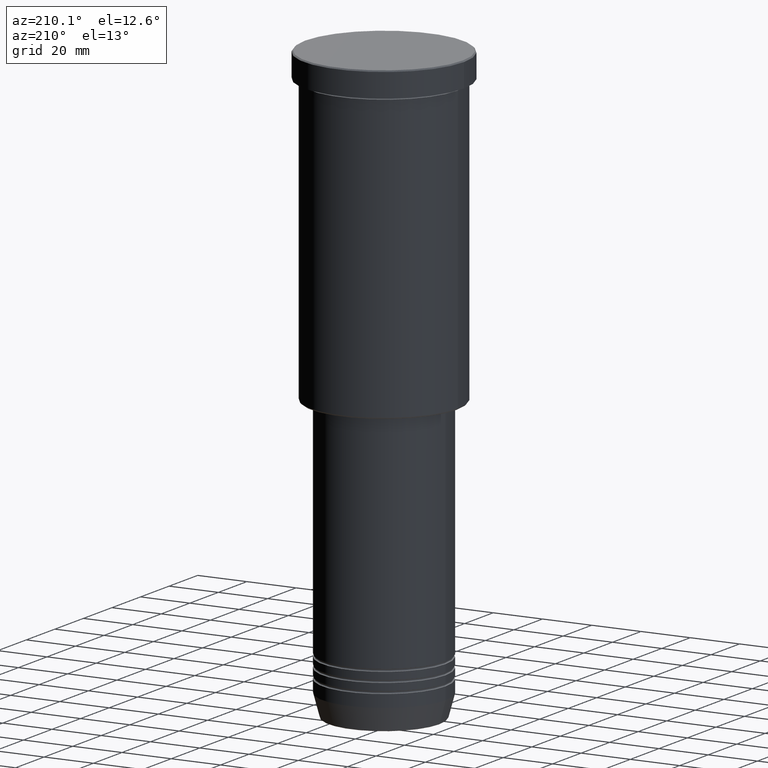
[diagram: clean part render]
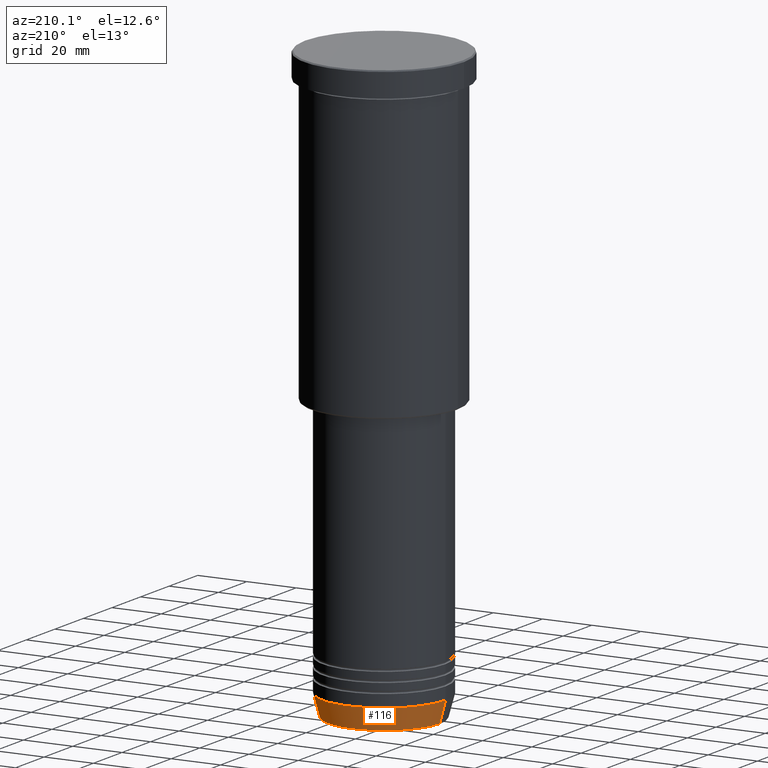
[diagram: same view with one face highlighted and labeled with its STEP entity id]
A machine part, auxiliary view. The second image highlights one B-rep face of the part: STEP entity #116.
In plain terms, the highlighted conical surface has half-angle 15 deg.
Its self-contained STEP definition (entity closure, byte-faithful):
#20 = DIRECTION ( 'NONE',  ( -0.000000000000000000, -0.000000000000000000, 1.000000000000000000 ) ) ;
#21 = AXIS2_PLACEMENT_3D ( 'NONE', #256, #61, #984 ) ;
#61 = DIRECTION ( 'NONE',  ( -0.000000000000000000, -0.000000000000000000, 1.000000000000000000 ) ) ;
#101 = ORIENTED_EDGE ( 'NONE', *, *, #847, .T. ) ;
#102 = DIRECTION ( 'NONE',  ( 1.000000000000000000, 0.000000000000000000, 0.000000000000000000 ) ) ;
#116 = ADVANCED_FACE ( 'NONE', ( #615 ), #771, .T. ) ;
#159 = CARTESIAN_POINT ( 'NONE',  ( 0.000000000000000000, 0.000000000000000000, -231.0000000000000000 ) ) ;
#160 = EDGE_CURVE ( 'NONE', #683, #301, #538, .T. ) ;
#171 = CARTESIAN_POINT ( 'NONE',  ( 25.00000000000000000, 0.000000000000000000, -231.0000000000000000 ) ) ;
#222 = VECTOR ( 'NONE', #1052, 1000.000000000000114 ) ;
#242 = ORIENTED_EDGE ( 'NONE', *, *, #160, .F. ) ;
#246 = LINE ( 'NONE', #1079, #876 ) ;
#256 = CARTESIAN_POINT ( 'NONE',  ( 0.000000000000000000, 0.000000000000000000, -231.0000000000000000 ) ) ;
#295 = CARTESIAN_POINT ( 'NONE',  ( 22.68775668727493766, 0.000000000000000000, -239.6294095225512706 ) ) ;
#301 = VERTEX_POINT ( 'NONE', #843 ) ;
#314 = ORIENTED_EDGE ( 'NONE', *, *, #612, .F. ) ;
#327 = DIRECTION ( 'NONE',  ( 1.000000000000000000, 0.000000000000000000, 0.000000000000000000 ) ) ;
#388 = LINE ( 'NONE', #687, #222 ) ;
#402 = AXIS2_PLACEMENT_3D ( 'NONE', #159, #430, #327 ) ;
#430 = DIRECTION ( 'NONE',  ( -0.000000000000000000, -0.000000000000000000, 1.000000000000000000 ) ) ;
#535 = CARTESIAN_POINT ( 'NONE',  ( -22.68775668727493766, 2.920032929279452187E-15, -239.6294095225512706 ) ) ;
#538 = CIRCLE ( 'NONE', #21, 25.00000000000000000 ) ;
#593 = CIRCLE ( 'NONE', #792, 22.68775668727493766 ) ;
#612 = EDGE_CURVE ( 'NONE', #1044, #683, #246, .T. ) ;
#615 = FACE_OUTER_BOUND ( 'NONE', #1133, .T. ) ;
#683 = VERTEX_POINT ( 'NONE', #171 ) ;
#687 = CARTESIAN_POINT ( 'NONE',  ( -25.00000000000000000, 3.061616997868383043E-15, -231.0000000000000000 ) ) ;
#771 = CONICAL_SURFACE ( 'NONE', #402, 25.00000000000000000, 0.2617993877991499629 ) ;
#792 = AXIS2_PLACEMENT_3D ( 'NONE', #849, #20, #102 ) ;
#843 = CARTESIAN_POINT ( 'NONE',  ( -25.00000000000000000, 3.061616997868383043E-15, -231.0000000000000000 ) ) ;
#847 = EDGE_CURVE ( 'NONE', #1044, #1141, #593, .T. ) ;
#849 = CARTESIAN_POINT ( 'NONE',  ( 0.000000000000000000, 0.000000000000000000, -239.6294095225512706 ) ) ;
#876 = VECTOR ( 'NONE', #1154, 1000.000000000000114 ) ;
#984 = DIRECTION ( 'NONE',  ( 1.000000000000000000, 0.000000000000000000, 0.000000000000000000 ) ) ;
#1044 = VERTEX_POINT ( 'NONE', #295 ) ;
#1052 = DIRECTION ( 'NONE',  ( -0.2588190451025212391, 3.169619151431771721E-17, 0.9659258262890680902 ) ) ;
#1067 = ORIENTED_EDGE ( 'NONE', *, *, #1110, .T. ) ;
#1079 = CARTESIAN_POINT ( 'NONE',  ( 25.00000000000000000, 0.000000000000000000, -231.0000000000000000 ) ) ;
#1110 = EDGE_CURVE ( 'NONE', #1141, #301, #388, .T. ) ;
#1133 = EDGE_LOOP ( 'NONE', ( #101, #1067, #242, #314 ) ) ;
#1141 = VERTEX_POINT ( 'NONE', #535 ) ;
#1154 = DIRECTION ( 'NONE',  ( 0.2588190451025212391, 0.000000000000000000, 0.9659258262890680902 ) ) ;